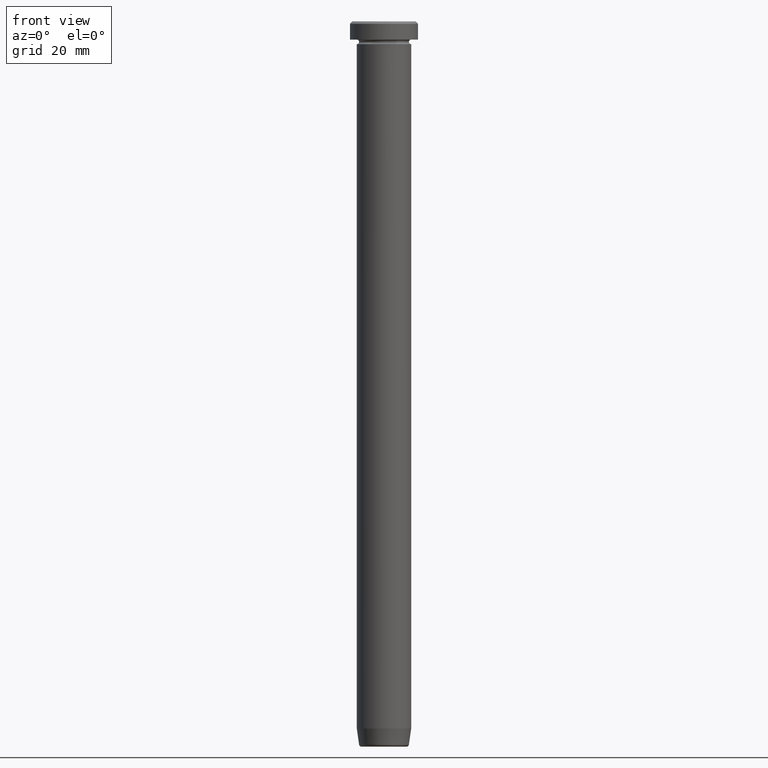
[diagram: clean part render]
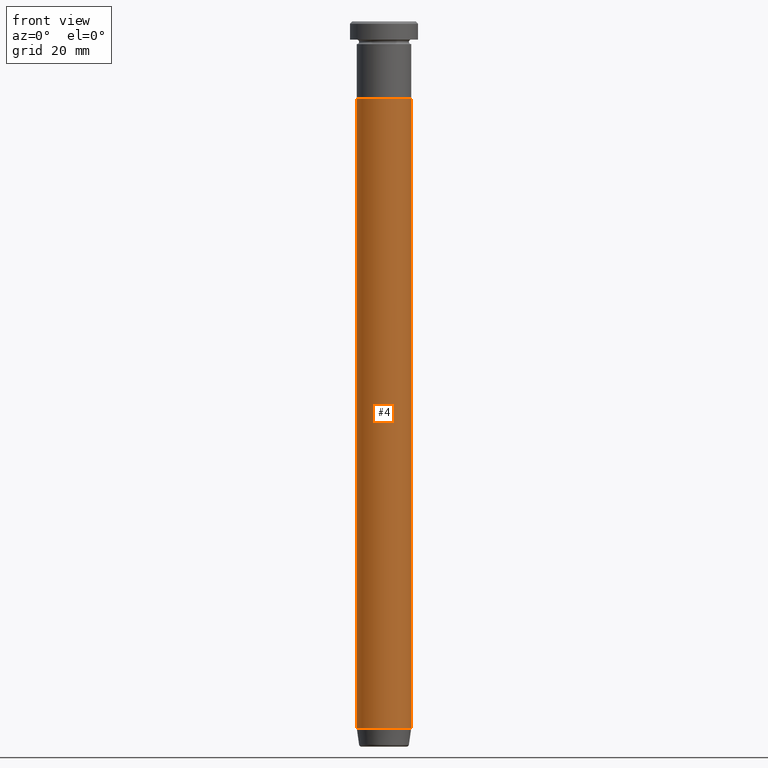
[diagram: same view with one face highlighted and labeled with its STEP entity id]
A machine part, front view. The second image highlights one B-rep face of the part: STEP entity #4.
In plain terms, the highlighted cylindrical surface (edge-blend (fillet) strip) has radius 6 mm, axis along (-0, -0, 1).
Its self-contained STEP definition (entity closure, byte-faithful):
#4 = ADVANCED_FACE ( 'NONE', ( #525 ), #209, .T. ) ;
#23 = ORIENTED_EDGE ( 'NONE', *, *, #521, .T. ) ;
#24 = ORIENTED_EDGE ( 'NONE', *, *, #598, .T. ) ;
#37 = CARTESIAN_POINT ( 'NONE',  ( -6.000000000000000000, 7.347880794884119736E-16, 0.000000000000000000 ) ) ;
#45 = CARTESIAN_POINT ( 'NONE',  ( 6.000000000000000000, 0.000000000000000000, 0.000000000000000000 ) ) ;
#57 = CARTESIAN_POINT ( 'NONE',  ( 0.000000000000000000, 0.000000000000000000, -17.00000000000000000 ) ) ;
#97 = CARTESIAN_POINT ( 'NONE',  ( -6.000000000000000000, 7.347880794884119736E-16, -17.00000000000000000 ) ) ;
#119 = AXIS2_PLACEMENT_3D ( 'NONE', #266, #262, #438 ) ;
#130 = LINE ( 'NONE', #45, #180 ) ;
#134 = CIRCLE ( 'NONE', #232, 6.000000000000000000 ) ;
#150 = CARTESIAN_POINT ( 'NONE',  ( 0.000000000000000000, 0.000000000000000000, -155.9999999999999716 ) ) ;
#161 = VERTEX_POINT ( 'NONE', #591 ) ;
#174 = CARTESIAN_POINT ( 'NONE',  ( 6.000000000000000000, 0.000000000000000000, -17.00000000000000000 ) ) ;
#180 = VECTOR ( 'NONE', #182, 1000.000000000000000 ) ;
#182 = DIRECTION ( 'NONE',  ( -0.000000000000000000, -0.000000000000000000, 1.000000000000000000 ) ) ;
#189 = DIRECTION ( 'NONE',  ( 1.000000000000000000, 0.000000000000000000, 0.000000000000000000 ) ) ;
#194 = DIRECTION ( 'NONE',  ( -0.000000000000000000, -0.000000000000000000, 1.000000000000000000 ) ) ;
#209 = CYLINDRICAL_SURFACE ( 'NONE', #119, 6.000000000000000000 ) ;
#214 = VERTEX_POINT ( 'NONE', #174 ) ;
#225 = CARTESIAN_POINT ( 'NONE',  ( -6.000000000000000000, 7.347880794884119736E-16, -155.9999999999999716 ) ) ;
#232 = AXIS2_PLACEMENT_3D ( 'NONE', #57, #194, #189 ) ;
#246 = CIRCLE ( 'NONE', #437, 6.000000000000000000 ) ;
#249 = EDGE_CURVE ( 'NONE', #251, #393, #443, .T. ) ;
#251 = VERTEX_POINT ( 'NONE', #225 ) ;
#254 = DIRECTION ( 'NONE',  ( 1.000000000000000000, 0.000000000000000000, 0.000000000000000000 ) ) ;
#262 = DIRECTION ( 'NONE',  ( -0.000000000000000000, -0.000000000000000000, 1.000000000000000000 ) ) ;
#266 = CARTESIAN_POINT ( 'NONE',  ( 0.000000000000000000, 0.000000000000000000, 0.000000000000000000 ) ) ;
#313 = EDGE_CURVE ( 'NONE', #393, #214, #134, .T. ) ;
#348 = ORIENTED_EDGE ( 'NONE', *, *, #249, .F. ) ;
#389 = ORIENTED_EDGE ( 'NONE', *, *, #313, .F. ) ;
#393 = VERTEX_POINT ( 'NONE', #97 ) ;
#437 = AXIS2_PLACEMENT_3D ( 'NONE', #150, #471, #254 ) ;
#438 = DIRECTION ( 'NONE',  ( 1.000000000000000000, 0.000000000000000000, 0.000000000000000000 ) ) ;
#443 = LINE ( 'NONE', #37, #459 ) ;
#452 = DIRECTION ( 'NONE',  ( -0.000000000000000000, -0.000000000000000000, 1.000000000000000000 ) ) ;
#459 = VECTOR ( 'NONE', #452, 1000.000000000000000 ) ;
#471 = DIRECTION ( 'NONE',  ( -0.000000000000000000, -0.000000000000000000, 1.000000000000000000 ) ) ;
#521 = EDGE_CURVE ( 'NONE', #161, #214, #130, .T. ) ;
#525 = FACE_OUTER_BOUND ( 'NONE', #581, .T. ) ;
#581 = EDGE_LOOP ( 'NONE', ( #348, #24, #23, #389 ) ) ;
#591 = CARTESIAN_POINT ( 'NONE',  ( 6.000000000000000000, 0.000000000000000000, -155.9999999999999716 ) ) ;
#598 = EDGE_CURVE ( 'NONE', #251, #161, #246, .T. ) ;